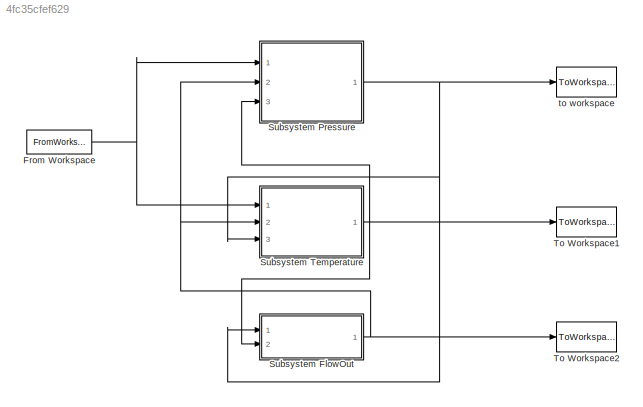
MODEL slx_4fc35cfef629
KIND model
CONFIG AbsTol = auto
CONFIG EnableMultiTasking = off
CONFIG FixedStep = auto
CONFIG MaxStep = auto
CONFIG MinStep = auto
CONFIG RelTol = 1e-3
CONFIG SampleTimeConstraint = Unconstrained
CONFIG Solver = VariableStepAuto
CONFIG SolverName = VariableStepAuto
CONFIG StartTime = 0.0
CONFIG StopTime = endTime
BLOCK [FromWorkspace] From Workspace
  SampleTime = 0
  VariableName = data.mdot_in
  ZeroCross = on
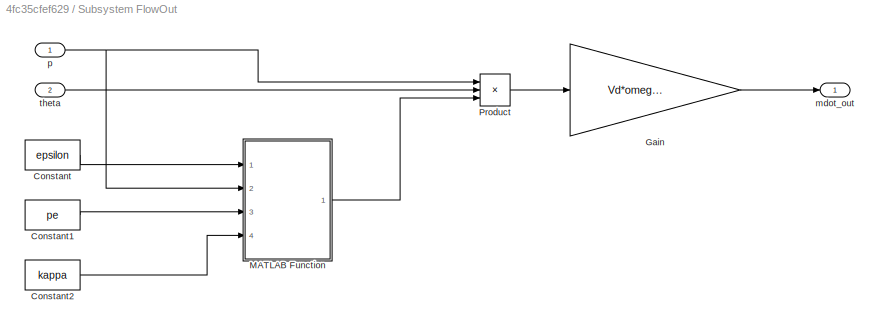
BLOCK [SubSystem] Subsystem FlowOut
  Ports = [2, 1]
  RequestExecContextInheritance = off
  Variant = off
BLOCK [Constant] Subsystem FlowOut/Constant
  Value = epsilon
BLOCK [Constant] Subsystem FlowOut/Constant1
  Value = pe
BLOCK [Constant] Subsystem FlowOut/Constant2
  Value = kappa
BLOCK [Gain] Subsystem FlowOut/Gain
  Gain = Vd*omega_e*lambda_lw/(4*pi*R)
  OutDataTypeStr = Inherit: Inherit via internal rule
  ParamDataTypeStr = Inherit: Inherit via internal rule
  SaturateOnIntegerOverflow = off
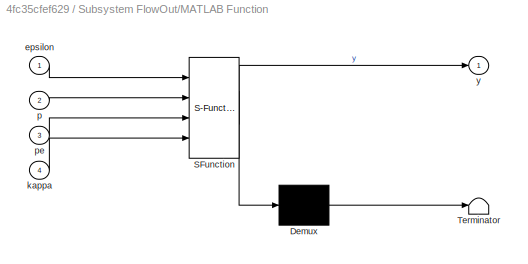
BLOCK [SubSystem] Subsystem FlowOut/MATLAB Function
  ErrorFcn = Stateflow.Translate.translate
  PermitHierarchicalResolution = ExplicitOnly
  Ports = [4, 1]
  RequestExecContextInheritance = off
  SFBlockType = MATLAB Function
  TreatAsAtomicUnit = on
  Variant = off
BLOCK [Demux] Subsystem FlowOut/MATLAB Function/ Demux 
  Outputs = 1
  Ports = [1, 1]
BLOCK [S-Function] Subsystem FlowOut/MATLAB Function/ SFunction 
  EnableBusSupport = on
  FunctionName = sf_sfun
  PortCounts = [4 2]
  Ports = [4, 2]
  SFcnIsStateOwnerBlock = off
  SFunctionDeploymentMode = off
  Tag = Stateflow S-Function intake_manifold 2
BLOCK [Terminator] Subsystem FlowOut/MATLAB Function/ Terminator 
BLOCK [Inport] Subsystem FlowOut/MATLAB Function/epsilon
  IconDisplay = Port number
BLOCK [Inport] Subsystem FlowOut/MATLAB Function/kappa
  IconDisplay = Port number
  Port = 4
BLOCK [Inport] Subsystem FlowOut/MATLAB Function/p
  IconDisplay = Port number
  Port = 2
BLOCK [Inport] Subsystem FlowOut/MATLAB Function/pe
  IconDisplay = Port number
  Port = 3
BLOCK [Outport] Subsystem FlowOut/MATLAB Function/y
  IconDisplay = Port number
BLOCK [Product] Subsystem FlowOut/Product
  InputSameDT = off
  Inputs = */*
  OutDataTypeStr = Inherit: Inherit via internal rule
  Ports = [3, 1]
  RndMeth = Floor
  SaturateOnIntegerOverflow = off
BLOCK [Outport] Subsystem FlowOut/mdot_out
  IconDisplay = Port number
BLOCK [Inport] Subsystem FlowOut/p
  IconDisplay = Port number
BLOCK [Inport] Subsystem FlowOut/theta
  IconDisplay = Port number
  Port = 2
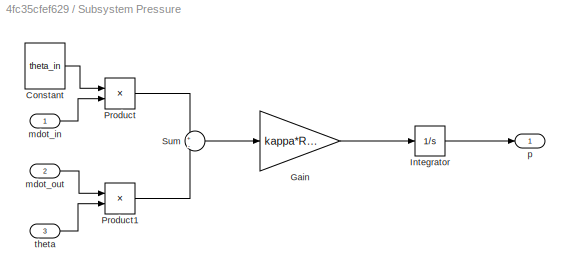
BLOCK [SubSystem] Subsystem Pressure
  Ports = [3, 1]
  RequestExecContextInheritance = off
  Variant = off
BLOCK [Constant] Subsystem Pressure/Constant
  Value = theta_in
BLOCK [Gain] Subsystem Pressure/Gain
  Gain = kappa*R/Vm
  OutDataTypeStr = Inherit: Inherit via internal rule
  ParamDataTypeStr = Inherit: Inherit via internal rule
  SaturateOnIntegerOverflow = off
BLOCK [Integrator] Subsystem Pressure/Integrator
  InitialCondition = p0
  Ports = [1, 1]
BLOCK [Product] Subsystem Pressure/Product
  InputSameDT = off
  OutDataTypeStr = Inherit: Inherit via internal rule
  Ports = [2, 1]
  RndMeth = Floor
  SaturateOnIntegerOverflow = off
BLOCK [Product] Subsystem Pressure/Product1
  InputSameDT = off
  OutDataTypeStr = Inherit: Inherit via internal rule
  Ports = [2, 1]
  RndMeth = Floor
  SaturateOnIntegerOverflow = off
BLOCK [Sum] Subsystem Pressure/Sum
  IconShape = round
  InputSameDT = off
  Inputs = +|-
  OutDataTypeStr = Inherit: Inherit via internal rule
  Ports = [2, 1]
  SaturateOnIntegerOverflow = off
BLOCK [Inport] Subsystem Pressure/mdot_in
  IconDisplay = Port number
BLOCK [Inport] Subsystem Pressure/mdot_out
  IconDisplay = Port number
  Port = 2
BLOCK [Outport] Subsystem Pressure/p
  IconDisplay = Port number
BLOCK [Inport] Subsystem Pressure/theta
  IconDisplay = Port number
  Port = 3
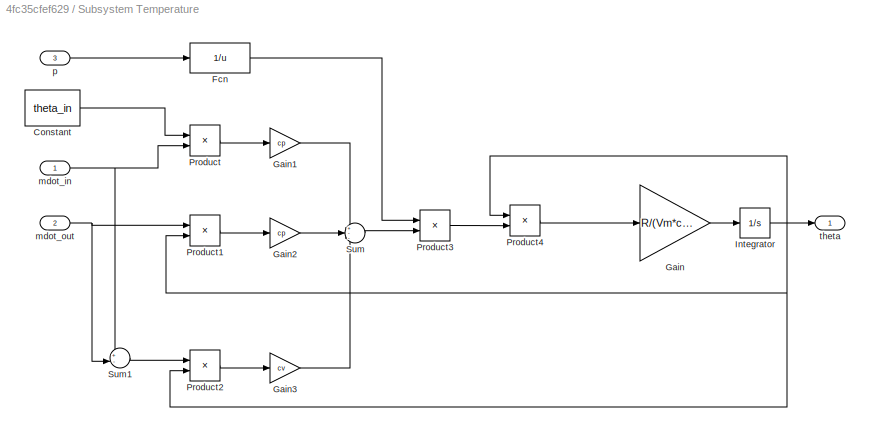
BLOCK [SubSystem] Subsystem Temperature
  Ports = [3, 1]
  RequestExecContextInheritance = off
  Variant = off
BLOCK [Constant] Subsystem Temperature/Constant
  Value = theta_in
BLOCK [Fcn] Subsystem Temperature/Fcn
  Expr = 1/u
BLOCK [Gain] Subsystem Temperature/Gain
  Gain = R/(Vm*cv)
  OutDataTypeStr = Inherit: Inherit via internal rule
  ParamDataTypeStr = Inherit: Inherit via internal rule
  SaturateOnIntegerOverflow = off
BLOCK [Gain] Subsystem Temperature/Gain1
  Gain = cp
  OutDataTypeStr = Inherit: Inherit via internal rule
  ParamDataTypeStr = Inherit: Inherit via internal rule
  SaturateOnIntegerOverflow = off
BLOCK [Gain] Subsystem Temperature/Gain2
  Gain = cp
  OutDataTypeStr = Inherit: Inherit via internal rule
  ParamDataTypeStr = Inherit: Inherit via internal rule
  SaturateOnIntegerOverflow = off
BLOCK [Gain] Subsystem Temperature/Gain3
  Gain = cv
  OutDataTypeStr = Inherit: Inherit via internal rule
  ParamDataTypeStr = Inherit: Inherit via internal rule
  SaturateOnIntegerOverflow = off
BLOCK [Integrator] Subsystem Temperature/Integrator
  InitialCondition = theta_in
  Ports = [1, 1]
BLOCK [Product] Subsystem Temperature/Product
  InputSameDT = off
  OutDataTypeStr = Inherit: Inherit via internal rule
  Ports = [2, 1]
  RndMeth = Floor
  SaturateOnIntegerOverflow = off
BLOCK [Product] Subsystem Temperature/Product1
  InputSameDT = off
  OutDataTypeStr = Inherit: Inherit via internal rule
  Ports = [2, 1]
  RndMeth = Floor
  SaturateOnIntegerOverflow = off
BLOCK [Product] Subsystem Temperature/Product2
  InputSameDT = off
  OutDataTypeStr = Inherit: Inherit via internal rule
  Ports = [2, 1]
  RndMeth = Floor
  SaturateOnIntegerOverflow = off
BLOCK [Product] Subsystem Temperature/Product3
  InputSameDT = off
  OutDataTypeStr = Inherit: Inherit via internal rule
  Ports = [2, 1]
  RndMeth = Floor
  SaturateOnIntegerOverflow = off
BLOCK [Product] Subsystem Temperature/Product4
  InputSameDT = off
  OutDataTypeStr = Inherit: Inherit via internal rule
  Ports = [2, 1]
  RndMeth = Floor
  SaturateOnIntegerOverflow = off
BLOCK [Sum] Subsystem Temperature/Sum
  IconShape = round
  InputSameDT = off
  Inputs = +--
  OutDataTypeStr = Inherit: Inherit via internal rule
  Ports = [3, 1]
  SaturateOnIntegerOverflow = off
BLOCK [Sum] Subsystem Temperature/Sum1
  IconShape = round
  InputSameDT = off
  Inputs = +-|
  OutDataTypeStr = Inherit: Inherit via internal rule
  Ports = [2, 1]
  SaturateOnIntegerOverflow = off
BLOCK [Inport] Subsystem Temperature/mdot_in
  IconDisplay = Port number
BLOCK [Inport] Subsystem Temperature/mdot_out
  IconDisplay = Port number
  Port = 2
BLOCK [Inport] Subsystem Temperature/p
  IconDisplay = Port number
  Port = 3
BLOCK [Outport] Subsystem Temperature/theta
  IconDisplay = Port number
BLOCK [ToWorkspace] To Workspace1
  FixptAsFi = on
  MaxDataPoints = inf
  Ports = [1]
  SampleTime = -1
  Save2DSignal = 3-D array (concatenate along third dimension)
  SaveFormat = Timeseries
  VariableName = theta
BLOCK [ToWorkspace] To Workspace2
  FixptAsFi = on
  MaxDataPoints = inf
  Ports = [1]
  SampleTime = -1
  Save2DSignal = 3-D array (concatenate along third dimension)
  SaveFormat = Timeseries
  VariableName = mdot_out
BLOCK [ToWorkspace] to workspace
  FixptAsFi = on
  MaxDataPoints = inf
  Ports = [1]
  SampleTime = -1
  Save2DSignal = 3-D array (concatenate along third dimension)
  SaveFormat = Timeseries
  VariableName = p
NET From Workspace:1 -> Subsystem Pressure:1, Subsystem Temperature:1
LINE Subsystem FlowOut/Constant1:1 -> Subsystem FlowOut/MATLAB Function:3
LINE Subsystem FlowOut/Constant2:1 -> Subsystem FlowOut/MATLAB Function:4
LINE Subsystem FlowOut/Constant:1 -> Subsystem FlowOut/MATLAB Function:1
LINE Subsystem FlowOut/Gain:1 -> Subsystem FlowOut/mdot_out:1
LINE Subsystem FlowOut/MATLAB Function:1 -> Subsystem FlowOut/Product:3
LINE Subsystem FlowOut/Product:1 -> Subsystem FlowOut/Gain:1
NET Subsystem FlowOut/p:1 -> Subsystem FlowOut/MATLAB Function:2, Subsystem FlowOut/Product:1
LINE Subsystem FlowOut/theta:1 -> Subsystem FlowOut/Product:2
NET Subsystem FlowOut:1 -> Subsystem Pressure:2, Subsystem Temperature:2, To Workspace2:1
LINE Subsystem Pressure/Constant:1 -> Subsystem Pressure/Product:1
LINE Subsystem Pressure/Gain:1 -> Subsystem Pressure/Integrator:1
LINE Subsystem Pressure/Integrator:1 -> Subsystem Pressure/p:1
LINE Subsystem Pressure/Product1:1 -> Subsystem Pressure/Sum:2
LINE Subsystem Pressure/Product:1 -> Subsystem Pressure/Sum:1
LINE Subsystem Pressure/Sum:1 -> Subsystem Pressure/Gain:1
LINE Subsystem Pressure/mdot_in:1 -> Subsystem Pressure/Product:2
LINE Subsystem Pressure/mdot_out:1 -> Subsystem Pressure/Product1:1
LINE Subsystem Pressure/theta:1 -> Subsystem Pressure/Product1:2
NET Subsystem Pressure:1 -> Subsystem FlowOut:1, Subsystem Temperature:3, to workspace:1
LINE Subsystem Temperature/Constant:1 -> Subsystem Temperature/Product:1
LINE Subsystem Temperature/Fcn:1 -> Subsystem Temperature/Product3:1
LINE Subsystem Temperature/Gain1:1 -> Subsystem Temperature/Sum:1
LINE Subsystem Temperature/Gain2:1 -> Subsystem Temperature/Sum:2
LINE Subsystem Temperature/Gain3:1 -> Subsystem Temperature/Sum:3
LINE Subsystem Temperature/Gain:1 -> Subsystem Temperature/Integrator:1
NET Subsystem Temperature/Integrator:1 -> Subsystem Temperature/Product1:2, Subsystem Temperature/Product2:2, Subsystem Temperature/Product4:1, Subsystem Temperature/theta:1
LINE Subsystem Temperature/Product1:1 -> Subsystem Temperature/Gain2:1
LINE Subsystem Temperature/Product2:1 -> Subsystem Temperature/Gain3:1
LINE Subsystem Temperature/Product3:1 -> Subsystem Temperature/Product4:2
LINE Subsystem Temperature/Product4:1 -> Subsystem Temperature/Gain:1
LINE Subsystem Temperature/Product:1 -> Subsystem Temperature/Gain1:1
LINE Subsystem Temperature/Sum1:1 -> Subsystem Temperature/Product2:1
LINE Subsystem Temperature/Sum:1 -> Subsystem Temperature/Product3:2
NET Subsystem Temperature/mdot_in:1 -> Subsystem Temperature/Product:2, Subsystem Temperature/Sum1:1
NET Subsystem Temperature/mdot_out:1 -> Subsystem Temperature/Product1:1, Subsystem Temperature/Sum1:2
LINE Subsystem Temperature/p:1 -> Subsystem Temperature/Fcn:1
NET Subsystem Temperature:1 -> Subsystem FlowOut:2, Subsystem Pressure:3, To Workspace1:1
note: NET lines group one-source signal fan-out (src -> all destinations, sorted); 1:1 wires keep LINE
CHART Subsystem FlowOut/MATLAB Function states=1 transitions=1
  STATE_LABEL 'eML_blk_kernel()'
  STATE_LABEL 'SCRIPT:\nfunction y = fcn(epsilon, p, pe, kappa)\n\ny = epsilon/(epsilon -1) - 1/(epsilon - 1)*(pe/p)^(1/kappa);\n'
